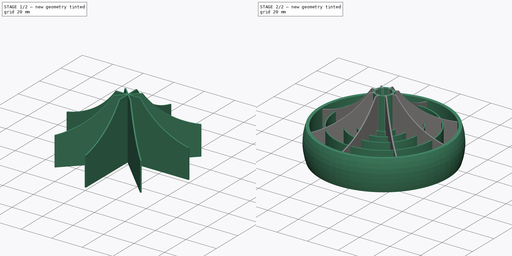
[diagram: build sequence overview — one tinted view per stage of 2, left to right]
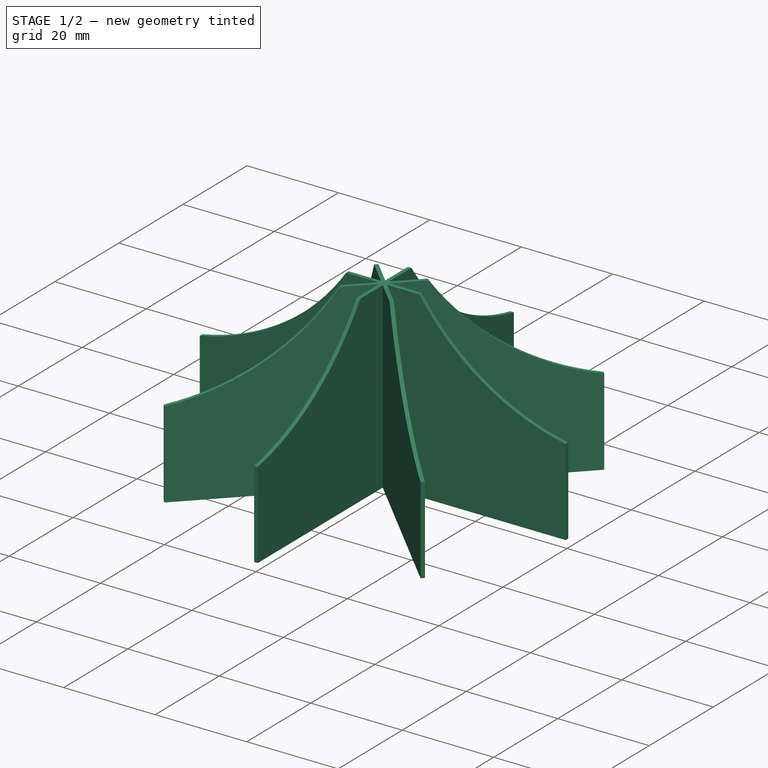
[diagram: stage 1 of 2 — iso view after this stage's code; geometry added in this stage tinted green]
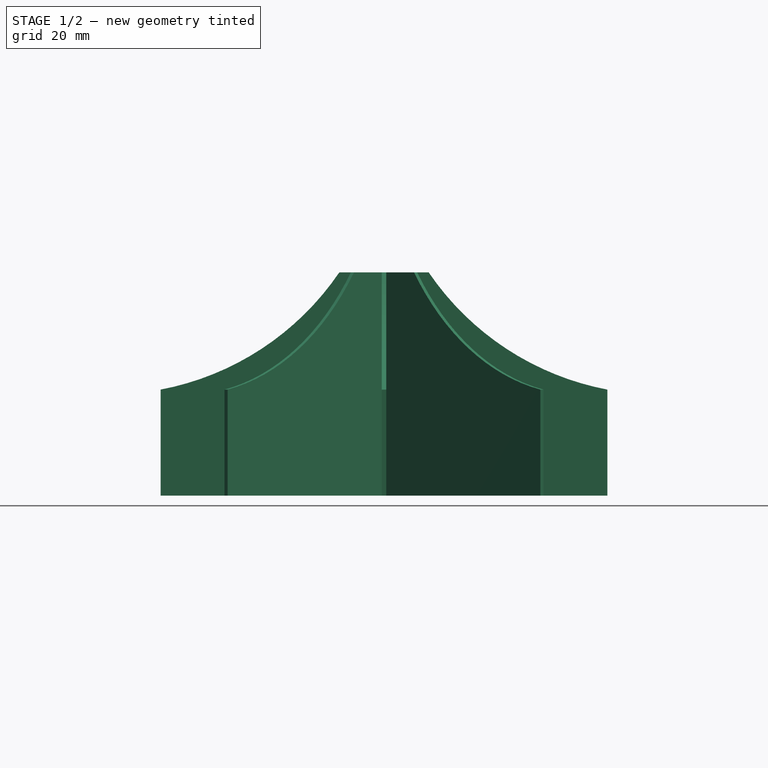
[diagram: stage 1 of 2 — front view after this stage's code; geometry added in this stage tinted green]
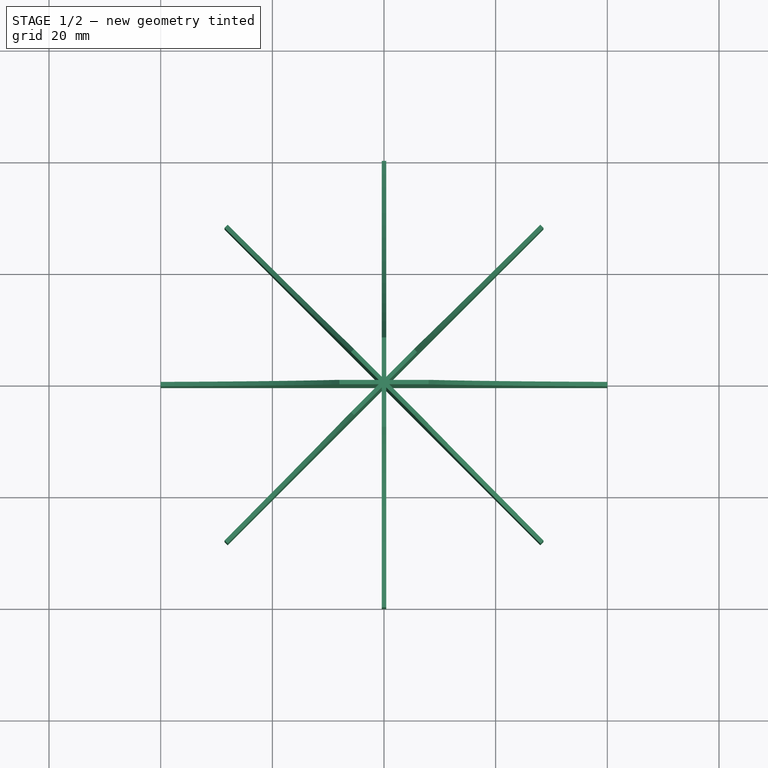
[diagram: stage 1 of 2 — top view after this stage's code; geometry added in this stage tinted green]
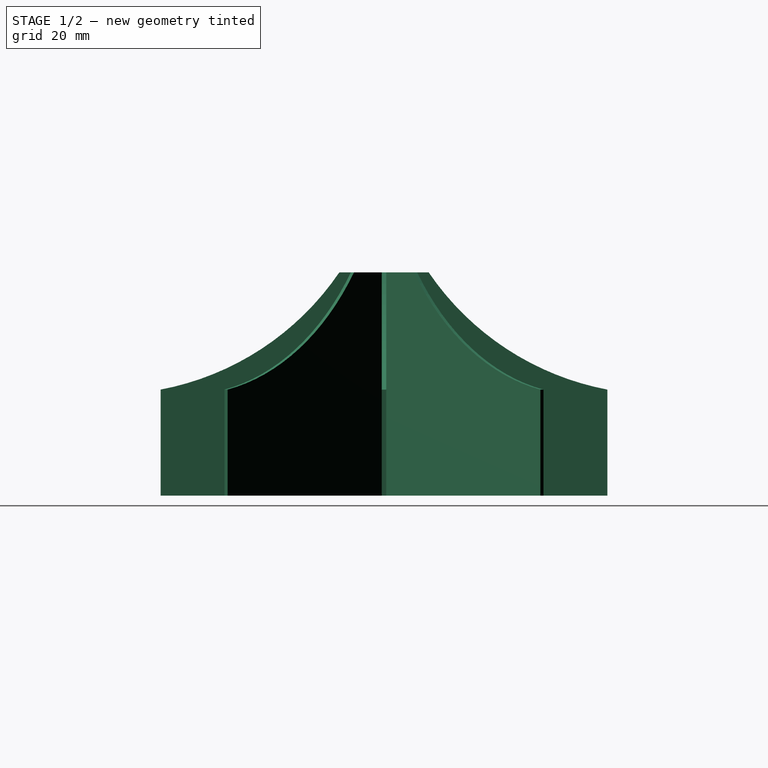
[diagram: stage 1 of 2 — right view after this stage's code; geometry added in this stage tinted green]
FCSTD DOCUMENT  (FreeCAD 1.1R20260223 (Git shallow))
Label: Exercise_1
License: All rights reserved
LicenseURL: http://en.wikipedia.org/wiki/All_rights_reserved
objects: Sketcher::SketchObject×2, App::Point×1, PartDesign::Pad×1, PartDesign::PolarPattern×1, PartDesign::Revolution×1, PartDesign::Hole×1, PartDesign::Body×1
note: 16 computed .brp shape members not serialized (recipe doc carries the construction recipe); baked Part::Feature solids carry a one-line shape summary decoded from their .brp

FEATURE [App::Point] Origin001
  Role = Origin
FEATURE [Sketcher::SketchObject] Sketch
  ArcFitTolerance = 1e-06
  AttachmentSupport = -> [Origin]
  ExternalTypes = [0]
  FullyConstrained = true
  MakeInternals = false
  MapMode = 5
  Placement = pos=(0,0,0) rot=(1,0,0;1.5708rad)
  sketch-geometry (5):
    g0: LineSegment StartX=8 StartY=40 StartZ=0 EndX=0 EndY=40 EndZ=0
    g1: LineSegment StartX=0 StartY=40 StartZ=0 EndX=0 EndY=0 EndZ=0
    g2: LineSegment StartX=0 StartY=0 StartZ=0 EndX=40 EndY=0 EndZ=0
    g3: LineSegment StartX=40 StartY=0 StartZ=0 EndX=40 EndY=19 EndZ=0
    g4: ArcOfCircle CenterX=49.3438 CenterY=68.1192 CenterZ=0 NormalX=0 NormalY=0 NormalZ=1 AngleXU=0 Radius=50 StartAngle=3.73886 EndAngle=4.52441
  constraints (15):
    c: Horizontal(g0)
    c: Coincident(g0,g1)
    c: Vertical(g1)
    c: Coincident(g1,g2)
    c: Horizontal(g2)
    c: Coincident(g2,g3)
    c: Vertical(g3)
    c: Coincident(g0,g4)
    c: Coincident(g3,g4)
    c: Radius(g4) = 50
    c: DistanceY(g1,g1) = 40
    c: DistanceX(g2,g2) = 40
    c: DistanceX(g0,g0) = 8
    c: DistanceY(g3,g0) = 21
    c: Coincident(g1,g-1)
FEATURE [PartDesign::Pad] Pad
  Direction = (0,-1,2e-16)
  Length = 0.8
  Length2 = 10
  Profile = -> Sketch
  ReferenceAxis = -> Sketch [N_Axis]
  Refine = true
  SideType = 2
  Suppressed = false
  Type = 0
  Type2 = 0
FEATURE [PartDesign::PolarPattern] PolarPattern
  Angle = 360
  Axis = -> Z_Axis
  BaseFeature = -> Pad
  Mode = 0
  Occurrences = 8
  Offset = 120
  Originals = -> [Pad]
  Refine = true
  SpacingPattern = [0]
  Spacings = [-1,-1,-1,-1,-1,-1,-1]
  Suppressed = false
  TransformMode = 0
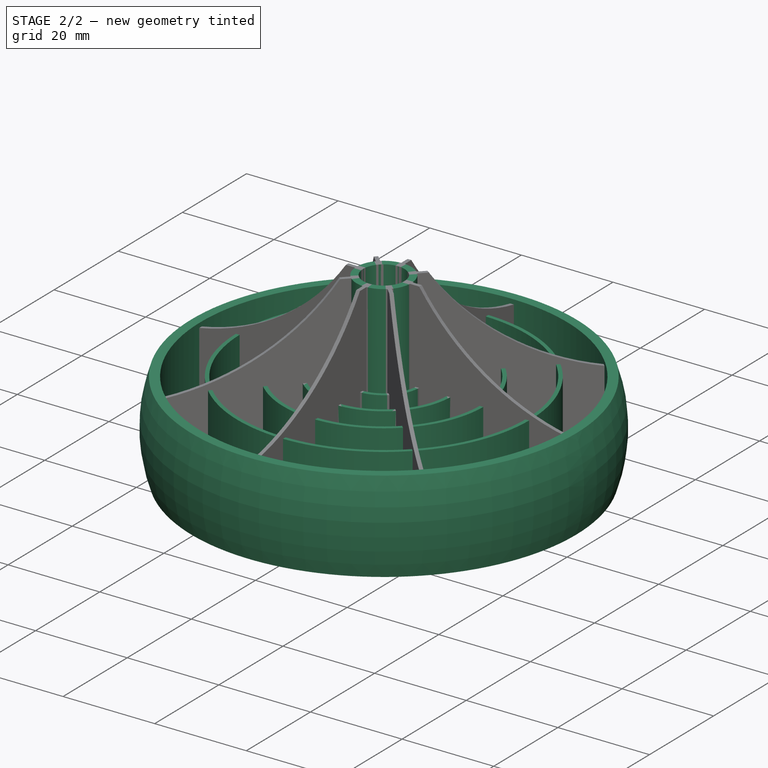
[diagram: stage 2 of 2 — iso view after this stage's code; geometry added in this stage tinted green]
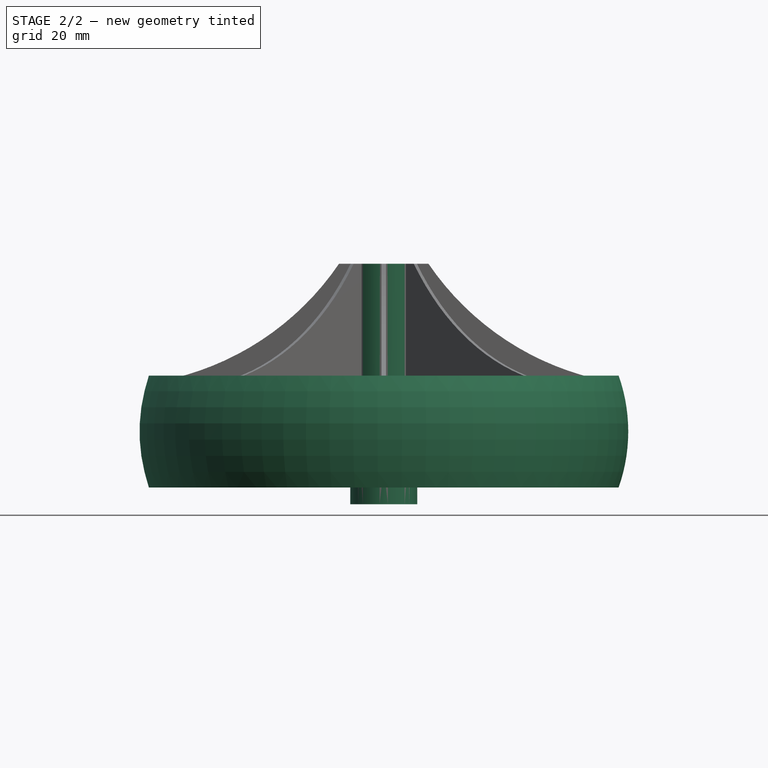
[diagram: stage 2 of 2 — front view after this stage's code; geometry added in this stage tinted green]
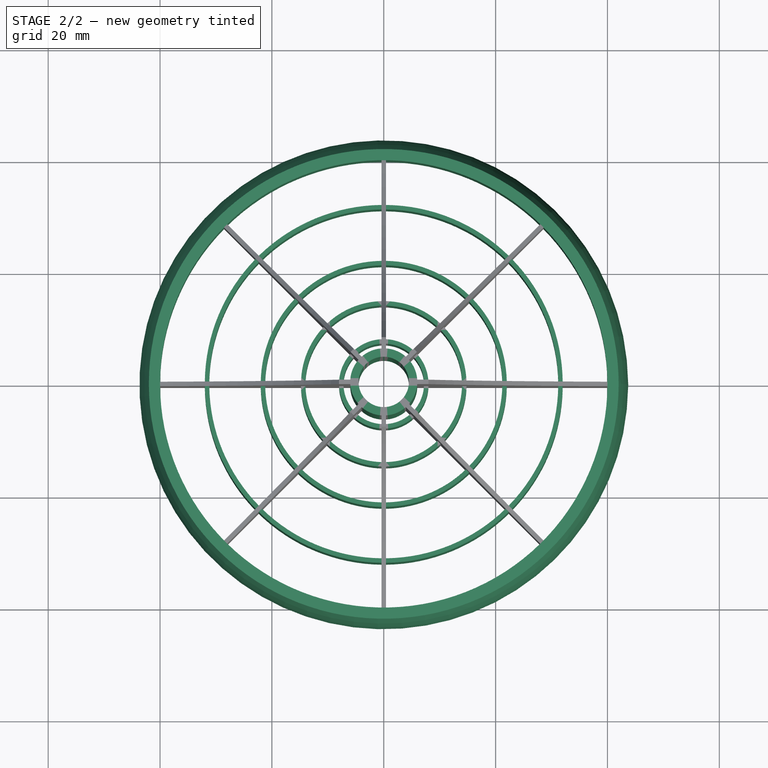
[diagram: stage 2 of 2 — top view after this stage's code; geometry added in this stage tinted green]
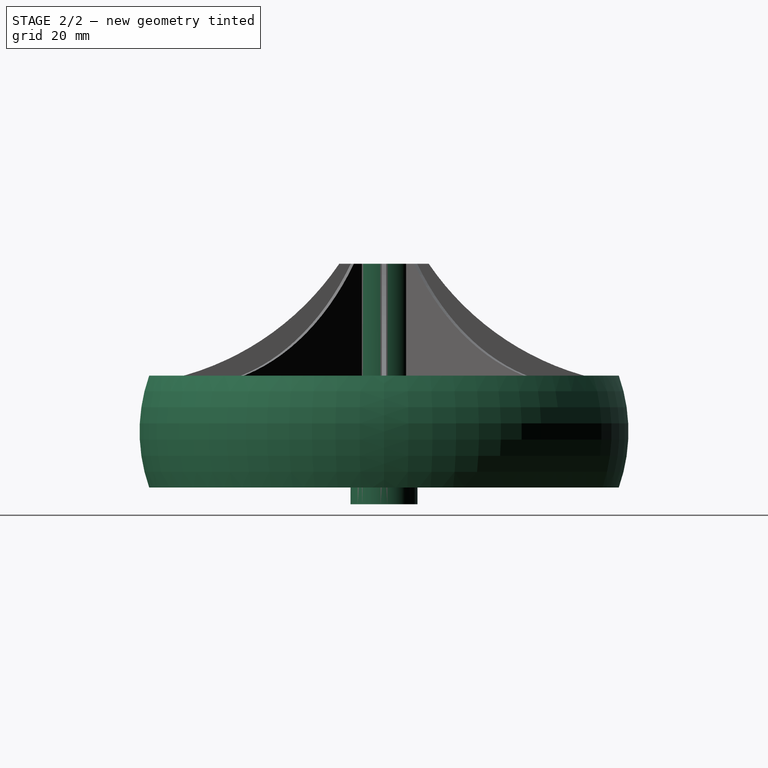
[diagram: stage 2 of 2 — right view after this stage's code; geometry added in this stage tinted green]
FEATURE [Sketcher::SketchObject] Sketch001
  ArcFitTolerance = 1e-06
  AttachmentSupport = -> [Origin]
  ExternalTypes = [0]
  FullyConstrained = true
  MakeInternals = false
  MapMode = 5
  Placement = pos=(0,0,0) rot=(1,0,0;1.5708rad)
  sketch-geometry (24):
    g0: LineSegment StartX=40 StartY=20 StartZ=0 EndX=40 EndY=0 EndZ=0
    g1: LineSegment StartX=40 StartY=-1.8e-15 StartZ=0 EndX=42 EndY=-1.8e-15 EndZ=0
    g2: LineSegment StartX=42 StartY=20 StartZ=0 EndX=40 EndY=20 EndZ=0
    g3: ArcOfCircle CenterX=13.7157 CenterY=10 CenterZ=0 NormalX=0 NormalY=0 NormalZ=1 AngleXU=0 Radius=30 StartAngle=5.94335 EndAngle=6.62302
    g4: LineSegment StartX=31.2 StartY=20 StartZ=0 EndX=31.2 EndY=0 EndZ=0
    g5: LineSegment StartX=31.2 StartY=-1.8e-15 StartZ=0 EndX=32 EndY=-1.8e-15 EndZ=0
    g6: LineSegment StartX=32 StartY=-1.8e-15 StartZ=0 EndX=32 EndY=20 EndZ=0
    g7: LineSegment StartX=32 StartY=20 StartZ=0 EndX=31.2 EndY=20 EndZ=0
    g8: LineSegment StartX=21.2 StartY=20 StartZ=0 EndX=21.2 EndY=0 EndZ=0
    g9: LineSegment StartX=21.2 StartY=-1.8e-15 StartZ=0 EndX=22 EndY=-1.8e-15 EndZ=0
    g10: LineSegment StartX=22 StartY=-1.8e-15 StartZ=0 EndX=22 EndY=20 EndZ=0
    g11: LineSegment StartX=22 StartY=20 StartZ=0 EndX=21.2 EndY=20 EndZ=0
    g12: LineSegment StartX=14 StartY=20 StartZ=0 EndX=14 EndY=0 EndZ=0
    g13: LineSegment StartX=14 StartY=-1.8e-15 StartZ=0 EndX=14.8 EndY=-1.8e-15 EndZ=0
    g14: LineSegment StartX=14.8 StartY=-1.8e-15 StartZ=0 EndX=14.8 EndY=20 EndZ=0
    g15: LineSegment StartX=14.8 StartY=20 StartZ=0 EndX=14 EndY=20 EndZ=0
    g16: LineSegment StartX=7.2 StartY=20 StartZ=0 EndX=7.2 EndY=0 EndZ=0
    g17: LineSegment StartX=7.2 StartY=-1.8e-15 StartZ=0 EndX=8 EndY=-1.8e-15 EndZ=0
    g18: LineSegment StartX=8 StartY=-1.8e-15 StartZ=0 EndX=8 EndY=20 EndZ=0
    g19: LineSegment StartX=8 StartY=20 StartZ=0 EndX=7.2 EndY=20 EndZ=0
    g20: LineSegment StartX=0 StartY=40 StartZ=0 EndX=0 EndY=-3 EndZ=0
    g21: LineSegment StartX=0 StartY=-3 StartZ=0 EndX=6 EndY=-3 EndZ=0
    g22: LineSegment StartX=6 StartY=-3 StartZ=0 EndX=6 EndY=40 EndZ=0
    g23: LineSegment StartX=6 StartY=40 StartZ=0 EndX=0 EndY=40 EndZ=0
  constraints (73):
    c: Coincident(g0,g1)
    c: Coincident(g2,g0)
    c: Vertical(g0)
    c: Horizontal(g1)
    c: Horizontal(g2)
    c: Coincident(g3,g2)
    c: Coincident(g3,g1)
    c: Radius(g3) = 30
    c: DistanceY(g0,g0) = 20
    c: Equal(g2,g1)
    c: Distance(g1,g1) = 2
    c: DistanceX(g-1,g0) = 40
    c: Horizontal(g0,g-1)
    c: Coincident(g4,g5)
    c: Coincident(g5,g6)
    c: Coincident(g6,g7)
    c: Coincident(g7,g4)
    c: Vertical(g4)
    c: Vertical(g6)
    c: Horizontal(g5)
    c: Horizontal(g7)
    c: Coincident(g8,g9)
    c: Coincident(g9,g10)
    c: Coincident(g10,g11)
    c: Coincident(g11,g8)
    c: Vertical(g8)
    c: Vertical(g10)
    c: Horizontal(g9)
    c: Horizontal(g11)
    c: Coincident(g12,g13)
    c: Coincident(g13,g14)
    c: Coincident(g14,g15)
    c: Coincident(g15,g12)
    c: Vertical(g12)
    c: Vertical(g14)
    c: Horizontal(g13)
    c: Horizontal(g15)
    c: Horizontal(g6,g8)
    c: Horizontal(g10,g12)
    c: Equal(g6,g8)
    c: Equal(g10,g12)
    c: Horizontal(g5,g0)
    c: Horizontal(g0,g6)
    c: Equal(g7,g11)
    c: Equal(g11,g15)
    c: DistanceX(g7,g7) = 0.8
    c: DistanceX(g-1,g5) = 32
    c: Distance(g9,g-1) = 22
    c: DistanceX(g-1,g13) = 14.8
    c: Coincident(g16,g17)
    c: Coincident(g17,g18)
    c: Coincident(g18,g19)
    c: Coincident(g19,g16)
    c: Vertical(g16)
    c: Vertical(g18)
    c: Horizontal(g17)
    c: Horizontal(g19)
    c: Equal(g19,g15)
    c: Horizontal(g18,g12)
    c: Horizontal(g17,g12)
    c: DistanceX(g-1,g17) = 8
    c: Coincident(g20,g21)
    c: Coincident(g21,g22)
    c: Coincident(g22,g23)
    c: Coincident(g23,g20)
    c: Vertical(g20)
    c: Vertical(g22)
    c: Horizontal(g21)
    c: Horizontal(g23)
    c: PointOnObject(g20,g-2)
    c: DistanceY(g20,g20) = 43
    c: DistanceY(g21,g-1) = 3
    c: DistanceX(g-1,g21) = 6
FEATURE [PartDesign::Revolution] Revolution
  Angle = 360
  Angle2 = 0
  Axis = (0,2e-16,1)
  Base = (0,0,0)
  BaseFeature = -> PolarPattern
  FuseOrder = 0
  Profile = -> Sketch001
  ReferenceAxis = -> Sketch001 [V_Axis]
  Refine = true
  Reversed = true
  Suppressed = false
  Type = 0
FEATURE [PartDesign::Hole] Hole
  BaseFeature = -> Revolution
  BaseProfileType = 7
  CustomThreadClearance = 0
  Depth = 49
  DepthType = 0
  Diameter = 9
  DrillForDepth = false
  DrillPoint = 1
  DrillPointAngle = 118
  HoleCutCountersinkAngle = 90
  HoleCutCustomValues = false
  HoleCutDepth = 0
  HoleCutDiameter = 0
  HoleCutType = 0
  ModelThread = false
  Profile = -> Revolution [Edge29]
  Refine = true
  Suppressed = false
  Tapered = false
  TaperedAngle = 90
  ThreadClass = 0
  ThreadDepth = 49
  ThreadDepthType = 0
  ThreadDiameter = 9
  ThreadDirection = 0
  ThreadFit = 0
  ThreadSize = 0
  ThreadType = 0
  Threaded = false
  UseCustomThreadClearance = false
FEATURE [PartDesign::Body] Body
  AllowCompound = true
  Group = -> [Sketch,Pad,PolarPattern,Sketch001,Revolution,Hole]
  Origin = -> Origin
  Tip = -> Hole
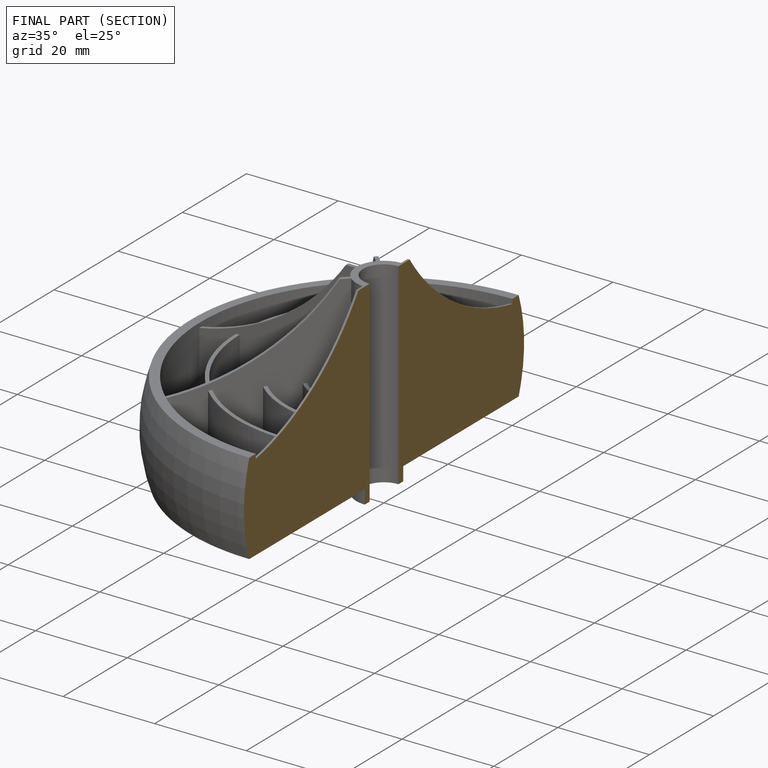
[diagram: finished part — half-section view (interior)]
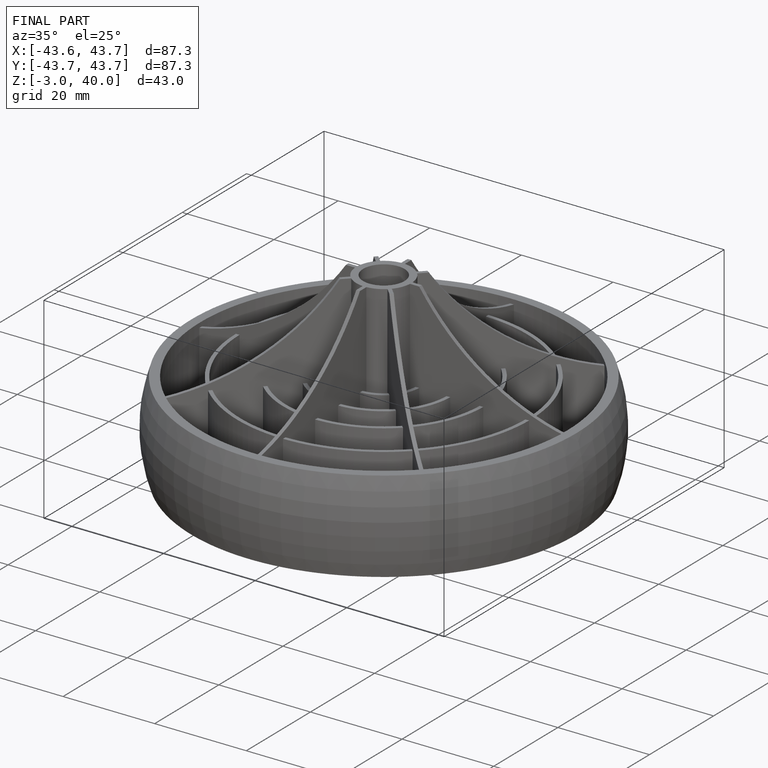
[diagram: finished part — iso view with bounding-box wireframe]
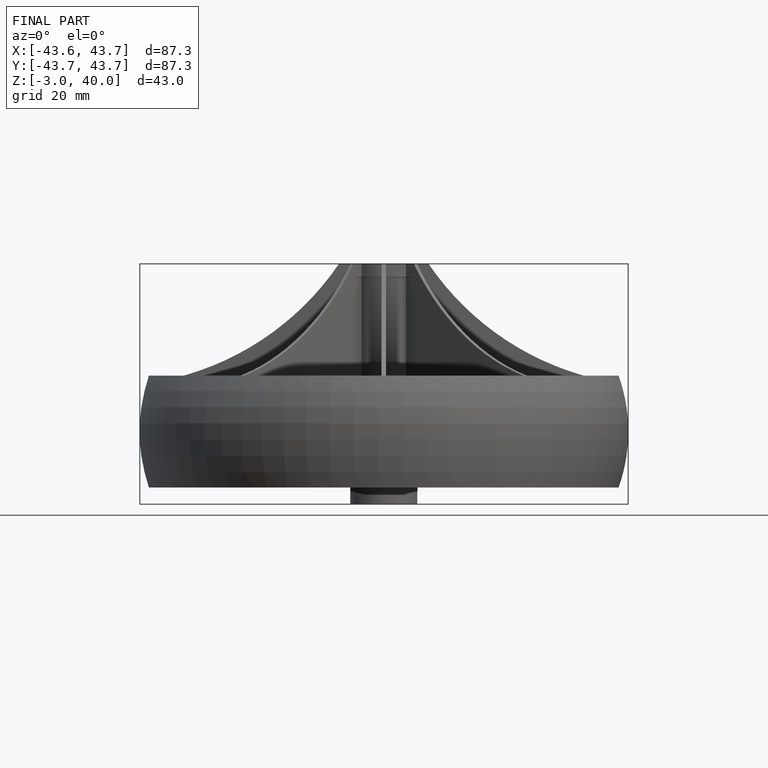
[diagram: finished part — front view with bounding-box wireframe]
